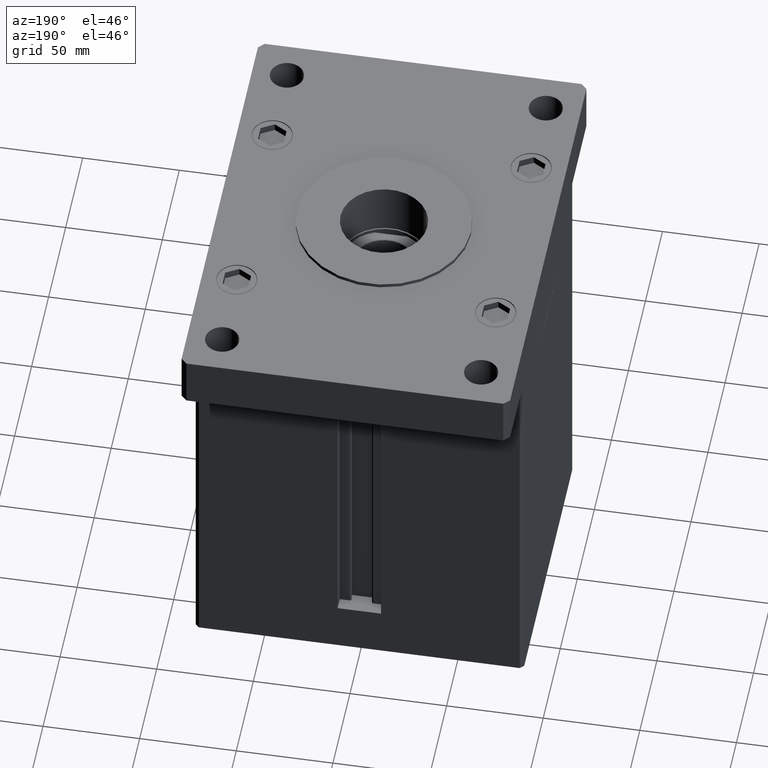
[diagram: clean part render]
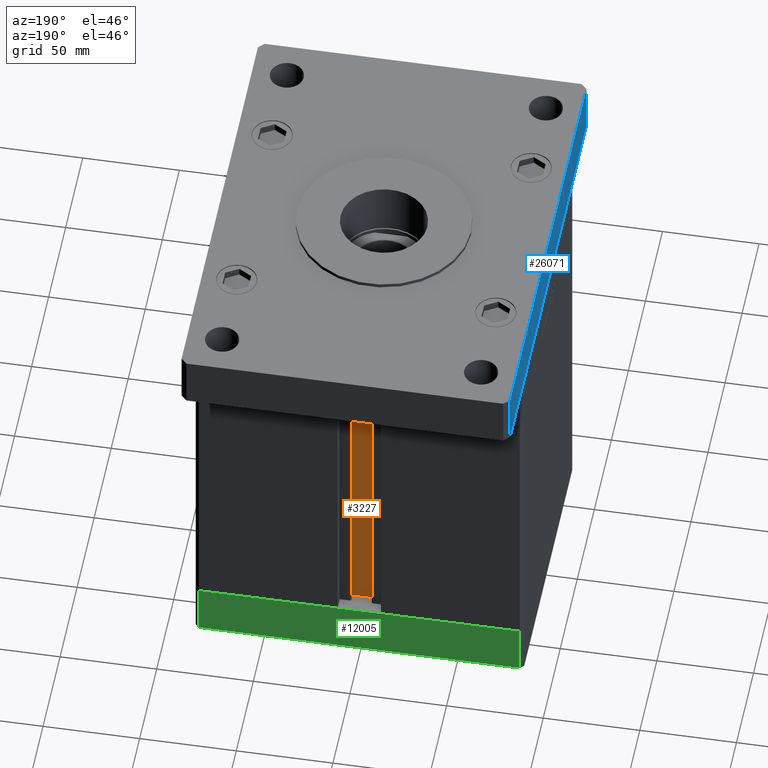
[diagram: same view with three faces highlighted in distinct colors, each labeled with its STEP entity id]
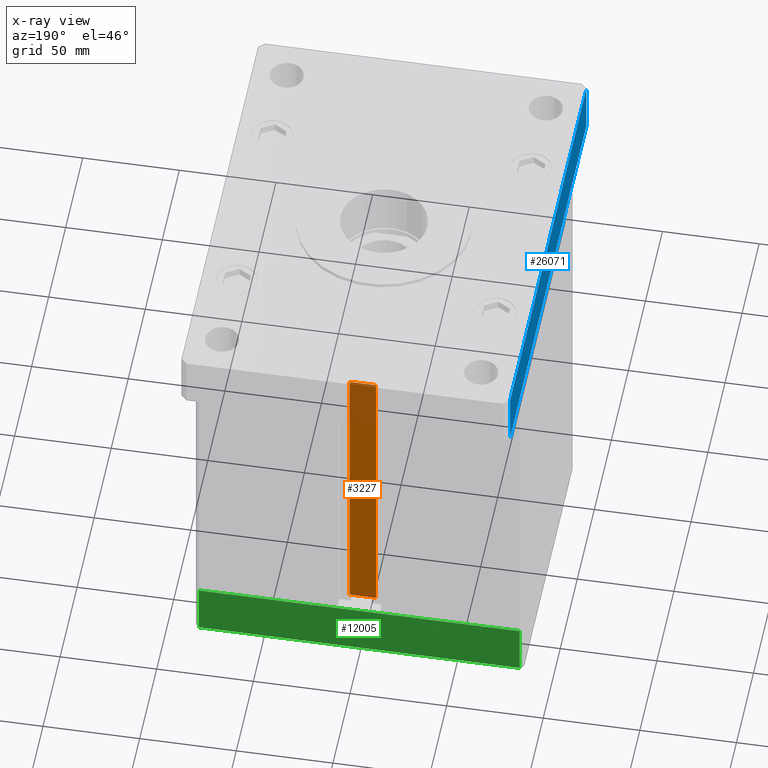
[diagram: x-ray of the same camera — body ghosted, the three highlighted faces saturated]
A machine part, auxiliary view with three faces highlighted in distinct colors.
The next image is the same camera in x-ray (body ghosted, the three faces saturated) — at least one of them is partly hidden behind the body in this view.
Their STEP definitions:

[orange] entity #3227 — the highlighted planar face has unit normal (0, -1, 0).
#300 = ORIENTED_EDGE ( 'NONE', *, *, #48025, .F. ) ;
#2986 = ORIENTED_EDGE ( 'NONE', *, *, #33616, .T. ) ;
#3227 = ADVANCED_FACE ( 'NONE', ( #3877 ), #40434, .F. ) ;
#3877 = FACE_OUTER_BOUND ( 'NONE', #33085, .T. ) ;
#6226 = VECTOR ( 'NONE', #16453, 1000.000000000000000 ) ;
#6636 = LINE ( 'NONE', #28277, #43313 ) ;
#6999 = VECTOR ( 'NONE', #20401, 1000.000000000000000 ) ;
#9836 = DIRECTION ( 'NONE',  ( -0.000000000000000000, -0.000000000000000000, 1.000000000000000000 ) ) ;
#12251 = CARTESIAN_POINT ( 'NONE',  ( 6.876153656360466826, 61.99999999999985079, 0.000000000000000000 ) ) ;
#13096 = VERTEX_POINT ( 'NONE', #18042 ) ;
#13611 = CARTESIAN_POINT ( 'NONE',  ( -6.876153656360466826, 61.99999999999985079, 0.000000000000000000 ) ) ;
#16453 = DIRECTION ( 'NONE',  ( -1.000000000000000000, 0.000000000000000000, 0.000000000000000000 ) ) ;
#16729 = LINE ( 'NONE', #32998, #6226 ) ;
#16822 = AXIS2_PLACEMENT_3D ( 'NONE', #12251, #37432, #36642 ) ;
#17326 = VERTEX_POINT ( 'NONE', #38640 ) ;
#18042 = CARTESIAN_POINT ( 'NONE',  ( 6.876153656360466826, 61.99999999999985079, 0.000000000000000000 ) ) ;
#20276 = VERTEX_POINT ( 'NONE', #37782 ) ;
#20401 = DIRECTION ( 'NONE',  ( -0.000000000000000000, -0.000000000000000000, 1.000000000000000000 ) ) ;
#23409 = ORIENTED_EDGE ( 'NONE', *, *, #50174, .F. ) ;
#28277 = CARTESIAN_POINT ( 'NONE',  ( 6.876153656360466826, 61.99999999999985079, 0.000000000000000000 ) ) ;
#29638 = EDGE_CURVE ( 'NONE', #32936, #13096, #6636, .T. ) ;
#30417 = LINE ( 'NONE', #13611, #35218 ) ;
#32936 = VERTEX_POINT ( 'NONE', #42468 ) ;
#32998 = CARTESIAN_POINT ( 'NONE',  ( 0.000000000000000000, 61.99999999999985079, 156.0000000000000000 ) ) ;
#33085 = EDGE_LOOP ( 'NONE', ( #300, #43989, #2986, #23409 ) ) ;
#33401 = LINE ( 'NONE', #40713, #6999 ) ;
#33616 = EDGE_CURVE ( 'NONE', #32936, #20276, #30417, .T. ) ;
#35218 = VECTOR ( 'NONE', #9836, 1000.000000000000000 ) ;
#36642 = DIRECTION ( 'NONE',  ( 0.000000000000000000, 0.000000000000000000, -1.000000000000000000 ) ) ;
#37432 = DIRECTION ( 'NONE',  ( 0.000000000000000000, -1.000000000000000000, -0.000000000000000000 ) ) ;
#37782 = CARTESIAN_POINT ( 'NONE',  ( -6.876153656360466826, 61.99999999999985079, 156.0000000000000000 ) ) ;
#38640 = CARTESIAN_POINT ( 'NONE',  ( 6.876153656360466826, 61.99999999999985079, 156.0000000000000000 ) ) ;
#40434 = PLANE ( 'NONE',  #16822 ) ;
#40713 = CARTESIAN_POINT ( 'NONE',  ( 6.876153656360466826, 61.99999999999985079, 0.000000000000000000 ) ) ;
#42468 = CARTESIAN_POINT ( 'NONE',  ( -6.876153656360466826, 61.99999999999985079, 0.000000000000000000 ) ) ;
#43313 = VECTOR ( 'NONE', #48858, 1000.000000000000000 ) ;
#43989 = ORIENTED_EDGE ( 'NONE', *, *, #29638, .F. ) ;
#48025 = EDGE_CURVE ( 'NONE', #13096, #17326, #33401, .T. ) ;
#48858 = DIRECTION ( 'NONE',  ( 1.000000000000000000, -0.000000000000000000, -0.000000000000000000 ) ) ;
#50174 = EDGE_CURVE ( 'NONE', #17326, #20276, #16729, .T. ) ;

[blue] entity #26071 — the highlighted planar face has unit normal (1, 0, 0).
#69 = DIRECTION ( 'NONE',  ( -0.000000000000000000, -0.000000000000000000, -1.000000000000000000 ) ) ;
#1050 = DIRECTION ( 'NONE',  ( 1.000000000000000000, 1.239088197126290570E-16, -0.000000000000000000 ) ) ;
#1317 = PLANE ( 'NONE',  #25924 ) ;
#2021 = ORIENTED_EDGE ( 'NONE', *, *, #4869, .F. ) ;
#4684 = CARTESIAN_POINT ( 'NONE',  ( -84.99999999999998579, -112.0000000000000142, 27.00000000000000000 ) ) ;
#4825 = DIRECTION ( 'NONE',  ( 1.239088197126290570E-16, -1.000000000000000000, 0.000000000000000000 ) ) ;
#4869 = EDGE_CURVE ( 'NONE', #7608, #33619, #21194, .T. ) ;
#6934 = CARTESIAN_POINT ( 'NONE',  ( -84.99999999999998579, -112.0000000000000142, 27.00000000000000000 ) ) ;
#7608 = VERTEX_POINT ( 'NONE', #6934 ) ;
#7633 = ORIENTED_EDGE ( 'NONE', *, *, #37894, .T. ) ;
#10342 = VECTOR ( 'NONE', #13384, 1000.000000000000000 ) ;
#11949 = VERTEX_POINT ( 'NONE', #35037 ) ;
#12656 = LINE ( 'NONE', #13460, #30193 ) ;
#12941 = LINE ( 'NONE', #28662, #49423 ) ;
#13384 = DIRECTION ( 'NONE',  ( 1.239088197126290570E-16, -1.000000000000000000, 0.000000000000000000 ) ) ;
#13460 = CARTESIAN_POINT ( 'NONE',  ( -85.00000000000001421, 112.0000000000000000, 27.00000000000000000 ) ) ;
#16636 = CARTESIAN_POINT ( 'NONE',  ( -85.00000000000001421, 112.0000000000000000, 27.00000000000000000 ) ) ;
#21194 = LINE ( 'NONE', #4684, #53210 ) ;
#22356 = EDGE_CURVE ( 'NONE', #11949, #7608, #50483, .T. ) ;
#23269 = EDGE_LOOP ( 'NONE', ( #46130, #2021, #42528, #7633 ) ) ;
#25924 = AXIS2_PLACEMENT_3D ( 'NONE', #34360, #1050, #30296 ) ;
#26071 = ADVANCED_FACE ( 'NONE', ( #38141 ), #1317, .F. ) ;
#28662 = CARTESIAN_POINT ( 'NONE',  ( -85.00000000000001421, 112.0000000000000000, 0.000000000000000000 ) ) ;
#30193 = VECTOR ( 'NONE', #45981, 1000.000000000000000 ) ;
#30296 = DIRECTION ( 'NONE',  ( -1.239088197126290570E-16, 1.000000000000000000, 0.000000000000000000 ) ) ;
#33249 = VERTEX_POINT ( 'NONE', #50257 ) ;
#33619 = VERTEX_POINT ( 'NONE', #42872 ) ;
#34360 = CARTESIAN_POINT ( 'NONE',  ( -85.00000000000001421, 112.0000000000000000, 27.00000000000000000 ) ) ;
#35037 = CARTESIAN_POINT ( 'NONE',  ( -85.00000000000001421, 112.0000000000000000, 27.00000000000000000 ) ) ;
#37894 = EDGE_CURVE ( 'NONE', #11949, #33249, #12656, .T. ) ;
#38141 = FACE_OUTER_BOUND ( 'NONE', #23269, .T. ) ;
#42528 = ORIENTED_EDGE ( 'NONE', *, *, #22356, .F. ) ;
#42872 = CARTESIAN_POINT ( 'NONE',  ( -84.99999999999998579, -112.0000000000000142, 0.000000000000000000 ) ) ;
#45981 = DIRECTION ( 'NONE',  ( -0.000000000000000000, -0.000000000000000000, -1.000000000000000000 ) ) ;
#46130 = ORIENTED_EDGE ( 'NONE', *, *, #50156, .T. ) ;
#49423 = VECTOR ( 'NONE', #4825, 1000.000000000000000 ) ;
#50156 = EDGE_CURVE ( 'NONE', #33249, #33619, #12941, .T. ) ;
#50257 = CARTESIAN_POINT ( 'NONE',  ( -85.00000000000001421, 112.0000000000000000, 0.000000000000000000 ) ) ;
#50483 = LINE ( 'NONE', #16636, #10342 ) ;
#53210 = VECTOR ( 'NONE', #69, 1000.000000000000000 ) ;

[green] entity #12005 — the highlighted planar face has unit normal (0, 1, 0).
#1707 = EDGE_CURVE ( 'NONE', #6739, #49905, #9196, .T. ) ;
#6575 = CARTESIAN_POINT ( 'NONE',  ( 82.99999999999992895, 72.50000000000002842, 0.000000000000000000 ) ) ;
#6739 = VERTEX_POINT ( 'NONE', #42070 ) ;
#9196 = LINE ( 'NONE', #43032, #25437 ) ;
#9510 = VECTOR ( 'NONE', #11119, 1000.000000000000000 ) ;
#10308 = CARTESIAN_POINT ( 'NONE',  ( 82.99999999999992895, 72.50000000000002842, -27.00000000000000000 ) ) ;
#11119 = DIRECTION ( 'NONE',  ( 0.000000000000000000, 0.000000000000000000, 1.000000000000000000 ) ) ;
#12005 = ADVANCED_FACE ( 'NONE', ( #20374 ), #36627, .T. ) ;
#12511 = DIRECTION ( 'NONE',  ( -2.508033941171287983E-16, 1.000000000000000000, 0.000000000000000000 ) ) ;
#13020 = ORIENTED_EDGE ( 'NONE', *, *, #1707, .F. ) ;
#14429 = LINE ( 'NONE', #30965, #32195 ) ;
#20374 = FACE_OUTER_BOUND ( 'NONE', #23483, .T. ) ;
#23483 = EDGE_LOOP ( 'NONE', ( #31218, #13020, #42393, #34366 ) ) ;
#25437 = VECTOR ( 'NONE', #42235, 1000.000000000000000 ) ;
#26831 = LINE ( 'NONE', #10308, #44952 ) ;
#27099 = DIRECTION ( 'NONE',  ( -1.000000000000000000, -2.508033941171287983E-16, 0.000000000000000000 ) ) ;
#28202 = AXIS2_PLACEMENT_3D ( 'NONE', #53134, #12511, #36881 ) ;
#30652 = VERTEX_POINT ( 'NONE', #51531 ) ;
#30942 = CARTESIAN_POINT ( 'NONE',  ( -83.00000000000001421, 72.49999999999998579, 0.000000000000000000 ) ) ;
#30965 = CARTESIAN_POINT ( 'NONE',  ( 82.99999999999992895, 72.50000000000002842, 0.000000000000000000 ) ) ;
#31218 = ORIENTED_EDGE ( 'NONE', *, *, #51471, .F. ) ;
#31980 = CARTESIAN_POINT ( 'NONE',  ( -83.00000000000001421, 72.49999999999998579, -27.00000000000000000 ) ) ;
#32195 = VECTOR ( 'NONE', #47752, 1000.000000000000000 ) ;
#33760 = VERTEX_POINT ( 'NONE', #30942 ) ;
#34366 = ORIENTED_EDGE ( 'NONE', *, *, #45333, .T. ) ;
#36627 = PLANE ( 'NONE',  #28202 ) ;
#36881 = DIRECTION ( 'NONE',  ( -1.000000000000000000, -2.508033941171287983E-16, 0.000000000000000000 ) ) ;
#42070 = CARTESIAN_POINT ( 'NONE',  ( 82.99999999999992895, 72.50000000000002842, -27.00000000000000000 ) ) ;
#42235 = DIRECTION ( 'NONE',  ( 0.000000000000000000, 0.000000000000000000, 1.000000000000000000 ) ) ;
#42393 = ORIENTED_EDGE ( 'NONE', *, *, #44603, .T. ) ;
#43032 = CARTESIAN_POINT ( 'NONE',  ( 82.99999999999992895, 72.50000000000002842, -27.00000000000000000 ) ) ;
#44603 = EDGE_CURVE ( 'NONE', #6739, #30652, #26831, .T. ) ;
#44952 = VECTOR ( 'NONE', #27099, 1000.000000000000000 ) ;
#45333 = EDGE_CURVE ( 'NONE', #30652, #33760, #48222, .T. ) ;
#47752 = DIRECTION ( 'NONE',  ( -1.000000000000000000, -2.508033941171287983E-16, 0.000000000000000000 ) ) ;
#48222 = LINE ( 'NONE', #31980, #9510 ) ;
#49905 = VERTEX_POINT ( 'NONE', #6575 ) ;
#51471 = EDGE_CURVE ( 'NONE', #49905, #33760, #14429, .T. ) ;
#51531 = CARTESIAN_POINT ( 'NONE',  ( -83.00000000000001421, 72.49999999999998579, -27.00000000000000000 ) ) ;
#53134 = CARTESIAN_POINT ( 'NONE',  ( 82.99999999999992895, 72.50000000000002842, -27.00000000000000000 ) ) ;